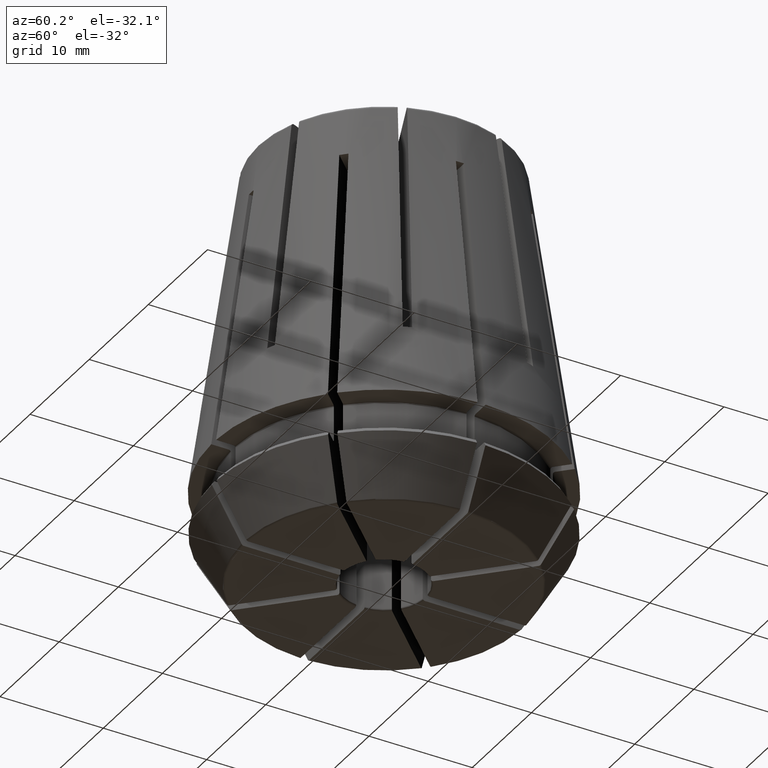
[diagram: clean part render]
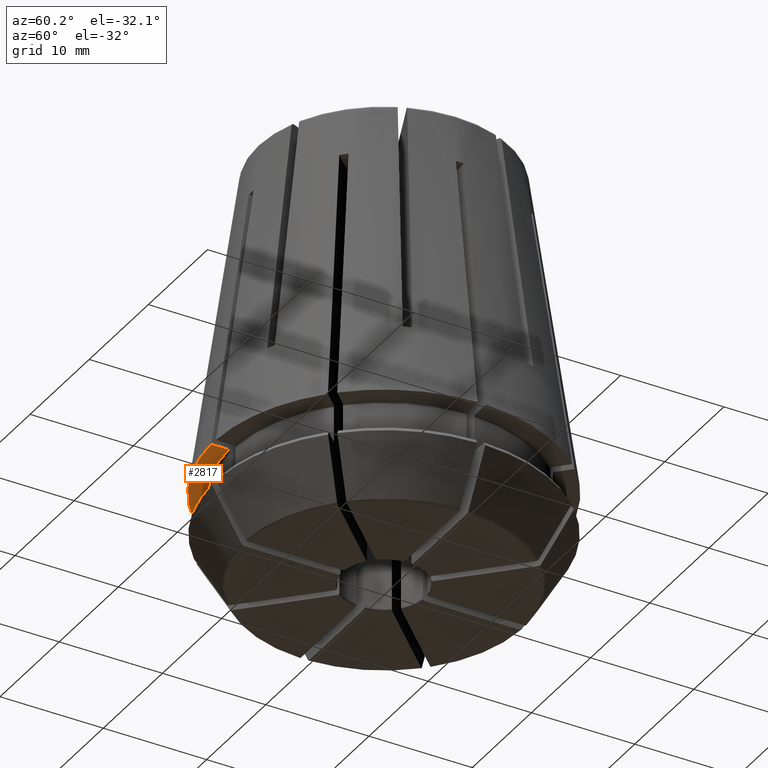
[diagram: same view with one face highlighted and labeled with its STEP entity id]
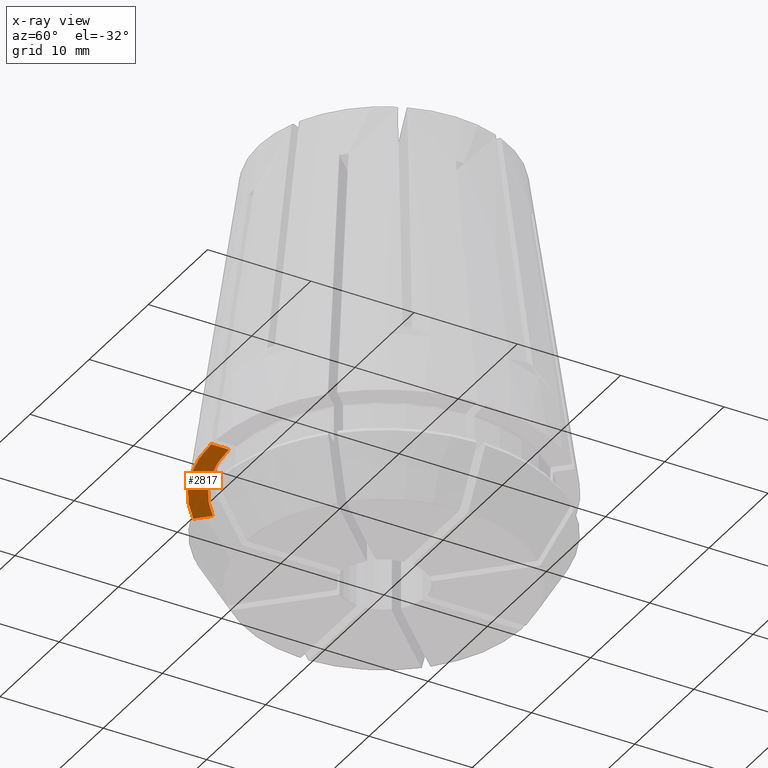
[diagram: x-ray of the same camera — body ghosted, the highlighted face saturated]
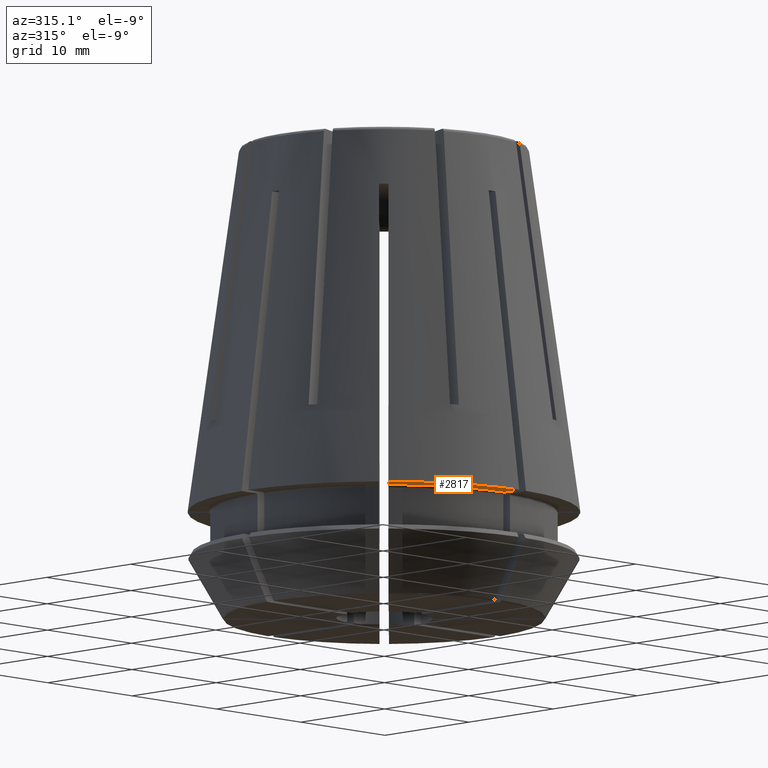
[diagram: same view with one face highlighted and labeled with its STEP entity id]
A machine part, auxiliary view. The second image highlights one B-rep face of the part: STEP entity #2817.
The next image is the same camera in x-ray: the body ghosted, the highlighted face saturated — about 22% of this face is hidden behind the body in this view.
A second angle (auxiliary view) of the same face is appended — the face is thin or edge-on in the first view.
In plain terms, the highlighted planar face has unit normal (0, 0, 1).
Its self-contained STEP definition (entity closure, byte-faithful):
#242=LINE('',#4231,#402);
#278=LINE('',#4463,#438);
#402=VECTOR('',#3327,1000.);
#438=VECTOR('',#3395,1000.);
#807=ORIENTED_EDGE('',*,*,#1676,.T.);
#808=ORIENTED_EDGE('',*,*,#1500,.T.);
#809=ORIENTED_EDGE('',*,*,#1677,.F.);
#810=ORIENTED_EDGE('',*,*,#1571,.F.);
#1500=EDGE_CURVE('',#1951,#1950,#242,.T.);
#1571=EDGE_CURVE('',#2017,#2018,#278,.T.);
#1676=EDGE_CURVE('',#2017,#1951,#2276,.T.);
#1677=EDGE_CURVE('',#2018,#1950,#2277,.T.);
#1950=VERTEX_POINT('',#4230);
#1951=VERTEX_POINT('',#4232);
#2017=VERTEX_POINT('',#4462);
#2018=VERTEX_POINT('',#4464);
#2276=CIRCLE('',#3047,14.8);
#2277=CIRCLE('',#3048,16.5);
#2425=EDGE_LOOP('',(#807,#808,#809,#810));
#2581=FACE_BOUND('',#2425,.T.);
#2722=PLANE('',#3046);
#2817=ADVANCED_FACE('',(#2581),#2722,.F.);
#3046=AXIS2_PLACEMENT_3D('',#4767,#3565,#3566);
#3047=AXIS2_PLACEMENT_3D('',#4768,#3567,#3568);
#3048=AXIS2_PLACEMENT_3D('',#4769,#3569,#3570);
#3327=DIRECTION('',(1.83697019872103E-16,-1.,0.));
#3395=DIRECTION('',(-0.707106781186547,-0.707106781186548,0.));
#3565=DIRECTION('',(0.,0.,1.));
#3566=DIRECTION('',(1.,0.,0.));
#3567=DIRECTION('',(0.,0.,1.));
#3568=DIRECTION('',(1.,0.,0.));
#3569=DIRECTION('',(0.,0.,1.));
#3570=DIRECTION('',(1.,0.,0.));
#4230=CARTESIAN_POINT('',(-0.4,-16.4951508025844,0.));
#4231=CARTESIAN_POINT('',(-0.4,-2.75545529808154E-15,1.85288457211878E-19));
#4232=CARTESIAN_POINT('',(-0.399999999999997,-14.7945936071249,9.2644228605939E-20));
#4462=CARTESIAN_POINT('',(-10.1785147520231,-10.7442001769723,-3.70204685623159E-18));
#4463=CARTESIAN_POINT('',(7.58284271247462,7.01715728752538,1.85288457211878E-19));
#4464=CARTESIAN_POINT('',(-11.3809902767275,-11.9466757016768,0.));
#4767=CARTESIAN_POINT('',(14.6,0.,1.85288457211878E-19));
#4768=CARTESIAN_POINT('',(0.,0.,0.));
#4769=CARTESIAN_POINT('',(0.,0.,0.));